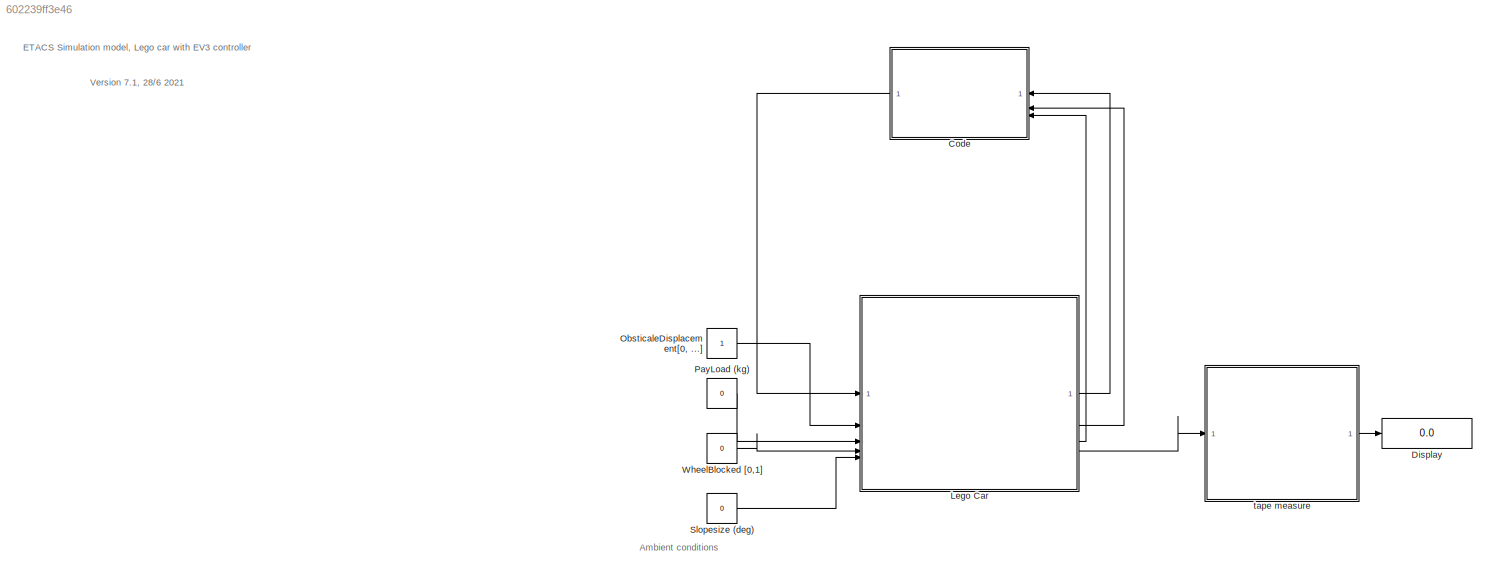
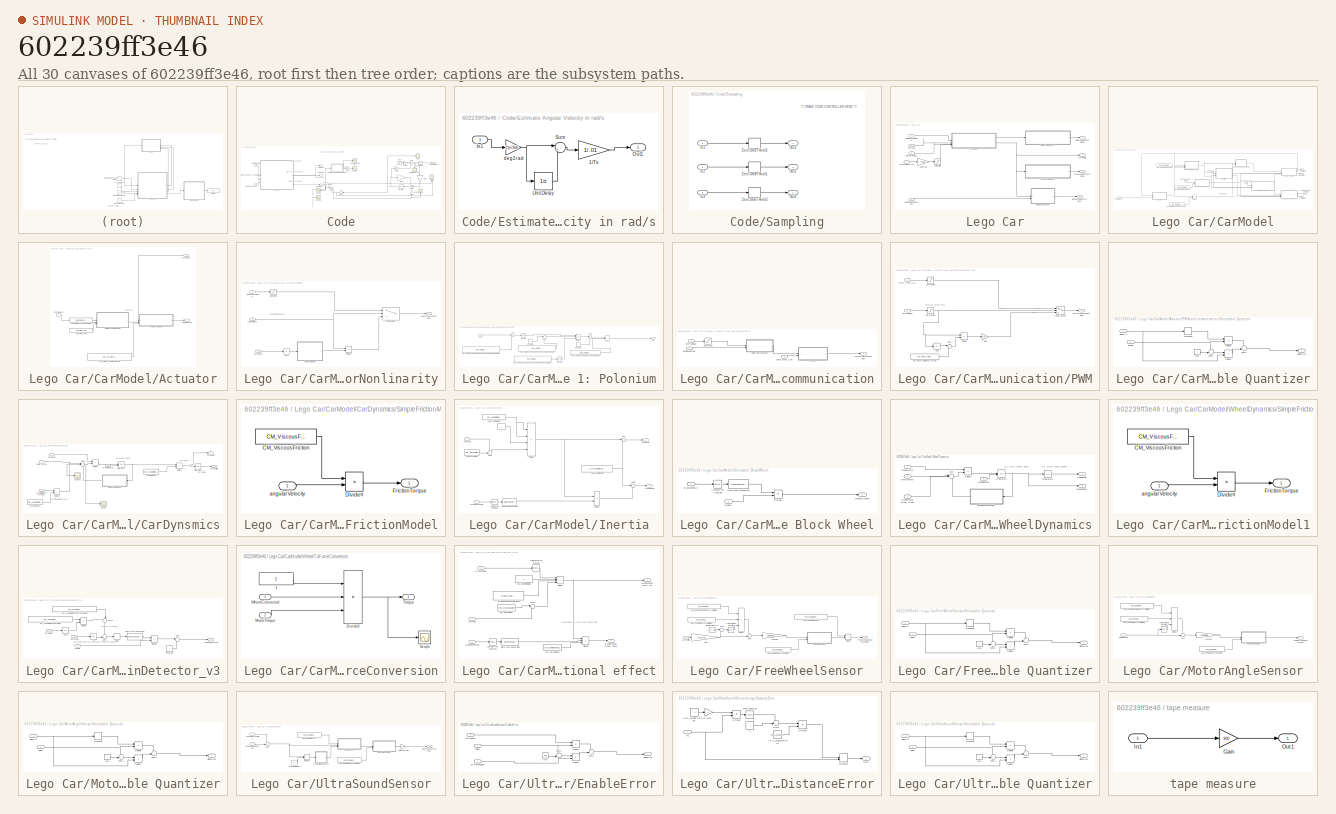
[diagram: thumbnail index - all 30 canvases of the model, root first then tree order]
MODEL slx_602239ff3e46
KIND model
CONFIG AbsTol = auto
CONFIG EnableMultiTasking = off
CONFIG FixedStep = auto
CONFIG MaxStep = auto
CONFIG MinStep = auto
CONFIG PreLoadFcn = InitPar7_1
CONFIG RelTol = 1e-20
CONFIG SampleTimeConstraint = Unconstrained
CONFIG SolverName = VariableStepAuto
CONFIG StartTime = 0.0
CONFIG StopTime = 30
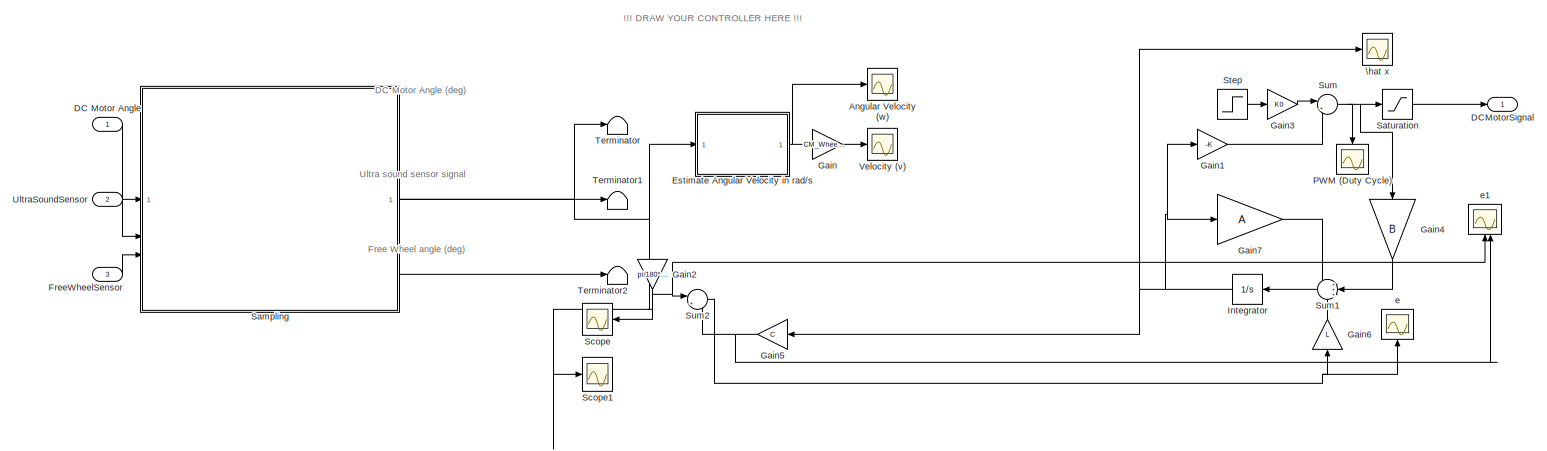
[diagram: Code - part 1/1, most of the canvas]
BLOCK [SubSystem] Code
  NameLocation = top
BLOCK [Scope] Code/Angular Velocity (w)
  Floating = off
  NumInputPorts = 1
  ScopeSpecificationString = Simulink.scopes.TimeScopeBlockCfg('CurrentConfiguration', extmgr.ConfigurationSet(extmgr.Configuration('Core','General UI',true),extmgr.Configuration('Core','Source UI',true),extmgr.Configuration('Sources','WiredSimulink',true,'DataLoggingVariableName','ScopeData1'),extmgr.Configuration('Visuals','Time Domain',true,'SerializedDisplays',{struct('MinYLimReal','3.97311','MaxYLimReal','4.02148','YLabe...<+1504ch>
BLOCK [Inport] Code/DC Motor Angle
BLOCK [Outport] Code/DCMotorSignal
  VectorParamsAs1DForOutWhenUnconnected = off
BLOCK [SubSystem] Code/Estimate Angular Velocity in rad//s
BLOCK [Gain] Code/Estimate Angular Velocity in rad//s/1//Ts
  Gain = 1/.01
BLOCK [Inport] Code/Estimate Angular Velocity in rad//s/In1
BLOCK [Outport] Code/Estimate Angular Velocity in rad//s/Out1
  VectorParamsAs1DForOutWhenUnconnected = off
BLOCK [Sum] Code/Estimate Angular Velocity in rad//s/Sum
  Inputs = |+-
BLOCK [UnitDelay] Code/Estimate Angular Velocity in rad//s/Unit Delay
  HasFrameUpgradeWarning = on
  SampleTime = -1
BLOCK [Gain] Code/Estimate Angular Velocity in rad//s/deg2rad
  Gain = 2*pi/360
BLOCK [Inport] Code/FreeWheelSensor
  Port = 3
BLOCK [Gain] Code/Gain
  Gain = CM_WheelRadius
BLOCK [Gain] Code/Gain1
  Gain = -K
  Multiplication = Matrix(K*u)
BLOCK [Gain] Code/Gain2
  Gain = pi/180*CM_WheelRadius
  NameLocation = left
BLOCK [Gain] Code/Gain3
  Gain = K0
  Multiplication = Matrix(K*u)
BLOCK [Gain] Code/Gain4
  Gain = B
  Multiplication = Matrix(K*u) (u vector)
  NameLocation = left
BLOCK [Gain] Code/Gain5
  Gain = C
  Multiplication = Matrix(K*u)
  NameLocation = top
BLOCK [Gain] Code/Gain6
  Gain = L
  Multiplication = Matrix(K*u)
  NameLocation = right
BLOCK [Gain] Code/Gain7
  Gain = A
  Multiplication = Matrix(K*u) (u vector)
BLOCK [Integrator] Code/Integrator
  NameLocation = top
BLOCK [Scope] Code/PWM (Duty Cycle)
  Floating = off
  NameLocation = left
  NumInputPorts = 1
  ScopeSpecificationString = Simulink.scopes.TimeScopeBlockCfg('CurrentConfiguration', extmgr.ConfigurationSet(extmgr.Configuration('Core','General UI',true),extmgr.Configuration('Core','Source UI',true),extmgr.Configuration('Sources','WiredSimulink',true,'DataLoggingVariableName','ScopeData2'),extmgr.Configuration('Visuals','Time Domain',true,'SerializedDisplays',{struct('MinYLimReal','-1.64887','MaxYLimReal','14.8398','YLab...<+1490ch>
BLOCK [SubSystem] Code/Sampling
BLOCK [Inport] Code/Sampling/In1
BLOCK [Inport] Code/Sampling/In2
  Port = 2
BLOCK [Inport] Code/Sampling/In3
  Port = 3
BLOCK [Outport] Code/Sampling/Out1
  VectorParamsAs1DForOutWhenUnconnected = off
BLOCK [Outport] Code/Sampling/Out2
  Port = 2
  VectorParamsAs1DForOutWhenUnconnected = off
BLOCK [Outport] Code/Sampling/Out3
  Port = 3
  VectorParamsAs1DForOutWhenUnconnected = off
BLOCK [ZeroOrderHold] Code/Sampling/Zero-Order Hold1
  SampleTime = SystemTs
BLOCK [ZeroOrderHold] Code/Sampling/Zero-Order Hold2
  SampleTime = SystemTs
BLOCK [ZeroOrderHold] Code/Sampling/Zero-Order Hold3
  SampleTime = SystemTs
BLOCK [Saturate] Code/Saturation
  LowerLimit = -100
  UpperLimit = 100
BLOCK [Scope] Code/Scope
  Floating = off
  NameLocation = top
  NumInputPorts = 1
  ScopeSpecificationString = Simulink.scopes.TimeScopeBlockCfg('CurrentConfiguration', extmgr.ConfigurationSet(extmgr.Configuration('Core','General UI',true),extmgr.Configuration('Core','Source UI',true),extmgr.Configuration('Sources','WiredSimulink',true,'DataLoggingVariableName','ScopeData1'),extmgr.Configuration('Visuals','Time Domain',true,'SerializedDisplays',{struct('MinYLimReal','-0.06205','MaxYLimReal','0.55842','YLab...<+1534ch>
BLOCK [Scope] Code/Scope1
  Floating = off
  NumInputPorts = 1
  ScopeSpecificationString = Simulink.scopes.TimeScopeBlockCfg('CurrentConfiguration', extmgr.ConfigurationSet(extmgr.Configuration('Core','General UI',true),extmgr.Configuration('Core','Source UI',true),extmgr.Configuration('Sources','WiredSimulink',true,'DataLoggingVariableName','ScopeData1'),extmgr.Configuration('Visuals','Time Domain',true,'SerializedDisplays',{struct('MinYLimReal','-864.875','MaxYLimReal','7783.875','YLa...<+1536ch>
BLOCK [Step] Code/Step
  After = 0.5
  SampleTime = 0
BLOCK [Sum] Code/Sum
  Inputs = |++
BLOCK [Sum] Code/Sum1
  Inputs = +++
  NameLocation = top
BLOCK [Sum] Code/Sum2
  Inputs = |+-
BLOCK [Terminator] Code/Terminator
BLOCK [Terminator] Code/Terminator1
BLOCK [Terminator] Code/Terminator2
BLOCK [Inport] Code/UltraSoundSensor
  Port = 2
BLOCK [Scope] Code/Velocity (v)
  Floating = off
  NumInputPorts = 1
  ScopeSpecificationString = Simulink.scopes.TimeScopeBlockCfg('CurrentConfiguration', extmgr.ConfigurationSet(extmgr.Configuration('Core','General UI',true),extmgr.Configuration('Core','Source UI',true),extmgr.Configuration('Sources','WiredSimulink',true,'DataLoggingVariableName','ScopeData1'),extmgr.Configuration('Visuals','Time Domain',true,'SerializedDisplays',{struct('MinYLimReal','-0.02618','MaxYLimReal','0.23562','YLab...<+1494ch>
BLOCK [Scope] Code/\hat x
  Floating = off
  NumInputPorts = 1
  ScopeSpecificationString = Simulink.scopes.TimeScopeBlockCfg('CurrentConfiguration', extmgr.ConfigurationSet(extmgr.Configuration('Core','General UI',true),extmgr.Configuration('Core','Source UI',true),extmgr.Configuration('Sources','WiredSimulink',true,'DataLoggingVariableName','ScopeData2'),extmgr.Configuration('Visuals','Time Domain',true),extmgr.Configuration('Tools','Plot Navigation',true),extmgr.Configuration('Tools',...<+40ch>
BLOCK [Scope] Code/e
  Floating = off
  NameLocation = right
  NumInputPorts = 1
  ScopeSpecificationString = Simulink.scopes.TimeScopeBlockCfg('CurrentConfiguration', extmgr.ConfigurationSet(extmgr.Configuration('Core','General UI',true),extmgr.Configuration('Core','Source UI',true),extmgr.Configuration('Sources','WiredSimulink',true,'DataLoggingVariableName','ScopeData1'),extmgr.Configuration('Visuals','Time Domain',true,'SerializedDisplays',{struct('MinYLimReal','-0.00253','MaxYLimReal','0.00885','YLab...<+1491ch>
BLOCK [Scope] Code/e1
  Floating = off
  NameLocation = right
  NumInputPorts = 2
  ScopeSpecificationString = Simulink.scopes.TimeScopeBlockCfg('CurrentConfiguration', extmgr.ConfigurationSet(extmgr.Configuration('Core','General UI',true),extmgr.Configuration('Core','Source UI',true),extmgr.Configuration('Sources','WiredSimulink',true,'DataLoggingVariableName','ScopeData1'),extmgr.Configuration('Visuals','Time Domain',true,'SerializedDisplays',{struct('MinYLimReal','-0.05847','MaxYLimReal','0.52619','YLab...<+1544ch>
BLOCK [Display] Display
  Decimation = 2
BLOCK [SubSystem] Lego Car
BLOCK [Inport] Lego Car/BlockWheel[0 1]
  Port = 4
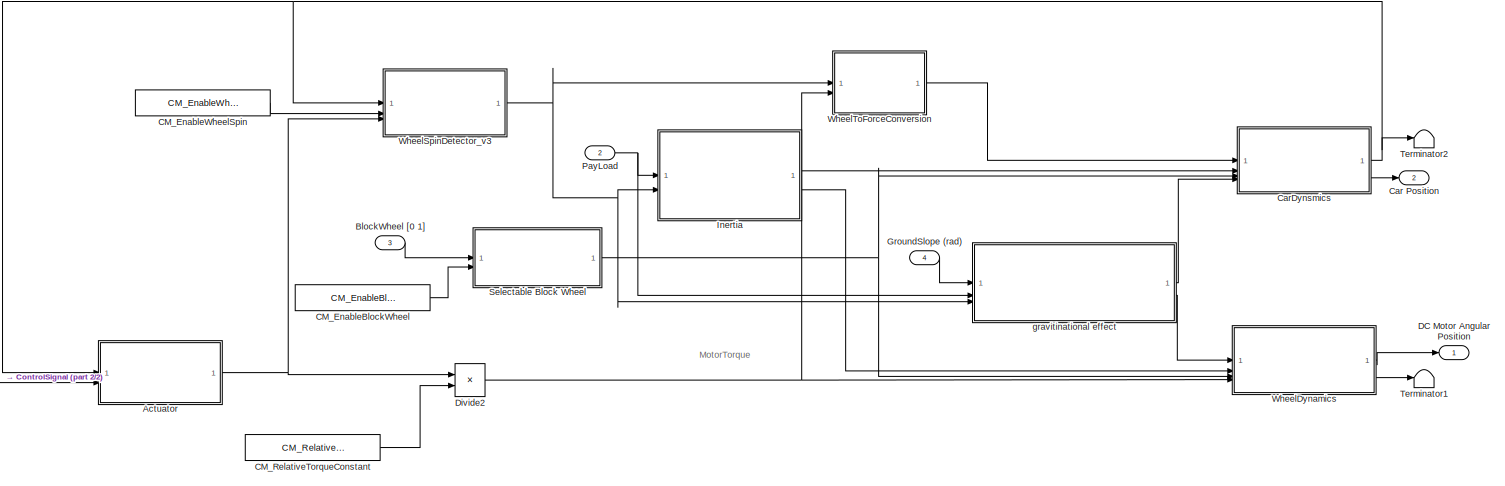
[diagram: Lego Car/CarModel - part 1/2, most of the canvas]
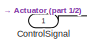
[diagram: Lego Car/CarModel - part 2/2, bottom left region]
BLOCK [SubSystem] Lego Car/CarModel
BLOCK [SubSystem] Lego Car/CarModel/Actuator
BLOCK [SubSystem] Lego Car/CarModel/Actuator/ActuatorNonlinarity
BLOCK [Abs] Lego Car/CarModel/Actuator/ActuatorNonlinarity/Abs1
  SaturateOnIntegerOverflow = off
BLOCK [Inport] Lego Car/CarModel/Actuator/ActuatorNonlinarity/CarSpeed
BLOCK [Inport] Lego Car/CarModel/Actuator/ActuatorNonlinarity/ControlSignal
  Port = 2
BLOCK [Product] Lego Car/CarModel/Actuator/ActuatorNonlinarity/Divide3
  Inputs = **
BLOCK [Outport] Lego Car/CarModel/Actuator/ActuatorNonlinarity/DutyScycle(procentage)
  VectorParamsAs1DForOutWhenUnconnected = off
BLOCK [MultiPortSwitch] Lego Car/CarModel/Actuator/ActuatorNonlinarity/Index Vector
  DataPortOrder = Zero-based contiguous
  InputSameDT = off
  Inputs = 2
  SaturateOnIntegerOverflow = off
  zeroidx = on
BLOCK [Inport] Lego Car/CarModel/Actuator/ActuatorNonlinarity/NonlinarityType [0 1]
  Port = 3
BLOCK [Saturate] Lego Car/CarModel/Actuator/ActuatorNonlinarity/Saturation
  LowerLimit = 0
  UpperLimit = 1
BLOCK [SubSystem] Lego Car/CarModel/Actuator/ActuatorNonlinarity/Tytpe 1: Polonium
BLOCK [Constant] Lego Car/CarModel/Actuator/ActuatorNonlinarity/Tytpe 1: Polonium/CM_Actuator_SpeedDependent_MaxGainSpeedOffset
  Value = CM_Actuator_SpeedDependent_MaxGainSpeedOffset
BLOCK [Constant] Lego Car/CarModel/Actuator/ActuatorNonlinarity/Tytpe 1: Polonium/CM_Actuator_SpeedDependent_MaxGainSpeedOffset1
  Value = CM_Actuator_SpeedDependent_MaxGainSpeedOffset
BLOCK [Constant] Lego Car/CarModel/Actuator/ActuatorNonlinarity/Tytpe 1: Polonium/CM_Actuator_SpeedDependent_MinGain
  Value = CM_Actuator_SpeedDependent_MinGain
BLOCK [Constant] Lego Car/CarModel/Actuator/ActuatorNonlinarity/Tytpe 1: Polonium/CM_Actuator_SpeedDependent_ZeroSpeedGain
  Value = CM_Actuator_SpeedDependent_ZeroSpeedGain
BLOCK [Constant] Lego Car/CarModel/Actuator/ActuatorNonlinarity/Tytpe 1: Polonium/Constant
BLOCK [Constant] Lego Car/CarModel/Actuator/ActuatorNonlinarity/Tytpe 1: Polonium/Constant1
BLOCK [Product] Lego Car/CarModel/Actuator/ActuatorNonlinarity/Tytpe 1: Polonium/Divide3
  Inputs = **/
BLOCK [Inport] Lego Car/CarModel/Actuator/ActuatorNonlinarity/Tytpe 1: Polonium/In1
BLOCK [MinMax] Lego Car/CarModel/Actuator/ActuatorNonlinarity/Tytpe 1: Polonium/Max
  Function = max
  Inputs = 2
BLOCK [Outport] Lego Car/CarModel/Actuator/ActuatorNonlinarity/Tytpe 1: Polonium/Out1
  VectorParamsAs1DForOutWhenUnconnected = off
BLOCK [Math] Lego Car/CarModel/Actuator/ActuatorNonlinarity/Tytpe 1: Polonium/Square
  Operator = square
  RndMeth = Zero
  SignedPower = on
BLOCK [Math] Lego Car/CarModel/Actuator/ActuatorNonlinarity/Tytpe 1: Polonium/Square1
  Operator = square
  RndMeth = Zero
  SignedPower = on
BLOCK [Sum] Lego Car/CarModel/Actuator/ActuatorNonlinarity/Tytpe 1: Polonium/Sum
  Inputs = |+-
BLOCK [Sum] Lego Car/CarModel/Actuator/ActuatorNonlinarity/Tytpe 1: Polonium/Sum1
  Inputs = |+-
BLOCK [Sum] Lego Car/CarModel/Actuator/ActuatorNonlinarity/Tytpe 1: Polonium/Sum2
  Inputs = |-+
BLOCK [Constant] Lego Car/CarModel/Actuator/CM_Actuator_NonlinarityType
  Value = CM_Actuator_NonlinarityType
BLOCK [Constant] Lego Car/CarModel/Actuator/CM_PWM_Type
  Value = CM_PWM_Type
BLOCK [Constant] Lego Car/CarModel/Actuator/CM_RelativeTorqueConstant1
  Value = CM_EnableActuatorQuantizer
BLOCK [Inport] Lego Car/CarModel/Actuator/CarSpeed
BLOCK [Inport] Lego Car/CarModel/Actuator/Controlsignal
  Port = 2
BLOCK [SubSystem] Lego Car/CarModel/Actuator/PWM and communication
BLOCK [Inport] Lego Car/CarModel/Actuator/PWM and communication/ControlSignal
BLOCK [Outport] Lego Car/CarModel/Actuator/PWM and communication/DutyScycle(procentage)
  VectorParamsAs1DForOutWhenUnconnected = off
BLOCK [Inport] Lego Car/CarModel/Actuator/PWM and communication/EnableQuantizer
  Port = 2
BLOCK [SubSystem] Lego Car/CarModel/Actuator/PWM and communication/PWM
BLOCK [Abs] Lego Car/CarModel/Actuator/PWM and communication/PWM/Abs1
  SaturateOnIntegerOverflow = off
BLOCK [Constant] Lego Car/CarModel/Actuator/PWM and communication/PWM/CM_PWM_FixedOff_offset
  Value = CM_PWM_FixedOff_offset
BLOCK [Inport] Lego Car/CarModel/Actuator/PWM and communication/PWM/ControlSignal
BLOCK [Product] Lego Car/CarModel/Actuator/PWM and communication/PWM/Divide3
  Inputs = */
BLOCK [Outport] Lego Car/CarModel/Actuator/PWM and communication/PWM/DutyScycle(procentage)
  VectorParamsAs1DForOutWhenUnconnected = off
BLOCK [Gain] Lego Car/CarModel/Actuator/PWM and communication/PWM/Gain
  Gain = 100
BLOCK [MultiPortSwitch] Lego Car/CarModel/Actuator/PWM and communication/PWM/Index Vector
  InputSameDT = off
  Inputs = 2
  SaturateOnIntegerOverflow = off
BLOCK [Inport] Lego Car/CarModel/Actuator/PWM and communication/PWM/PWM_ Type [1 2]
  Port = 2
BLOCK [Saturate] Lego Car/CarModel/Actuator/PWM and communication/PWM/Saturation
  LowerLimit = 1
  UpperLimit = 3
BLOCK [Saturate] Lego Car/CarModel/Actuator/PWM and communication/PWM/Saturation1
  LowerLimit = -100
  UpperLimit = 100
BLOCK [Sum] Lego Car/CarModel/Actuator/PWM and communication/PWM/Sum
  Inputs = |++
BLOCK [Saturate] Lego Car/CarModel/Actuator/PWM and communication/Saturation
  LowerLimit = -100
  UpperLimit = 100
BLOCK [Inport] Lego Car/CarModel/Actuator/PWM and communication/Select_PWM_type
  Port = 3
BLOCK [SubSystem] Lego Car/CarModel/Actuator/PWM and communication/Selectable Quantizer
BLOCK [Product] Lego Car/CarModel/Actuator/PWM and communication/Selectable Quantizer/Divide4
  Inputs = **
BLOCK [Product] Lego Car/CarModel/Actuator/PWM and communication/Selectable Quantizer/Divide5
  Inputs = **
BLOCK [Inport] Lego Car/CarModel/Actuator/PWM and communication/Selectable Quantizer/Enable
  Port = 2
BLOCK [Constant] Lego Car/CarModel/Actuator/PWM and communication/Selectable Quantizer/One
BLOCK [Quantizer] Lego Car/CarModel/Actuator/PWM and communication/Selectable Quantizer/Quantizer
  QuantizationInterval = 1
BLOCK [Inport] Lego Car/CarModel/Actuator/PWM and communication/Selectable Quantizer/Signal In
BLOCK [Outport] Lego Car/CarModel/Actuator/PWM and communication/Selectable Quantizer/Signal Out
  VectorParamsAs1DForOutWhenUnconnected = off
BLOCK [Sum] Lego Car/CarModel/Actuator/PWM and communication/Selectable Quantizer/Sum1
  Inputs = -+|
BLOCK [Sum] Lego Car/CarModel/Actuator/PWM and communication/Selectable Quantizer/Sum2
  Inputs = +|+
BLOCK [Outport] Lego Car/CarModel/Actuator/Relativetorque
  VectorParamsAs1DForOutWhenUnconnected = off
BLOCK [Inport] Lego Car/CarModel/BlockWheel [0 1]
  Port = 3
BLOCK [Constant] Lego Car/CarModel/CM_EnableBlockWheel
  Value = CM_EnableBlockWheel
BLOCK [Constant] Lego Car/CarModel/CM_EnableWheelSpin
  Value = CM_EnableWheelSpin
BLOCK [Constant] Lego Car/CarModel/CM_RelativeTorqueConstant
  Value = CM_RelativeTorqueConstant
BLOCK [Outport] Lego Car/CarModel/Car Position
  Port = 2
  VectorParamsAs1DForOutWhenUnconnected = off
BLOCK [SubSystem] Lego Car/CarModel/CarDynsmics
BLOCK [Inport] Lego Car/CarModel/CarDynsmics/CarInertia
  Port = 2
BLOCK [Outport] Lego Car/CarModel/CarDynsmics/CarPosition
  Port = 2
  VectorParamsAs1DForOutWhenUnconnected = off
BLOCK [Outport] Lego Car/CarModel/CarDynsmics/CarVelocity
  VectorParamsAs1DForOutWhenUnconnected = off
BLOCK [Product] Lego Car/CarModel/CarDynsmics/Divide1
  Inputs = **
BLOCK [Product] Lego Car/CarModel/CarDynsmics/Divide2
  Inputs = **
BLOCK [Product] Lego Car/CarModel/CarDynsmics/Divide4
  Inputs = /*
BLOCK [Integrator] Lego Car/CarModel/CarDynsmics/Integrator3
  ExternalReset = level
BLOCK [Integrator] Lego Car/CarModel/CarDynsmics/Integrator6
BLOCK [Inport] Lego Car/CarModel/CarDynsmics/MotorTorque
BLOCK [Scope] Lego Car/CarModel/CarDynsmics/Scope
  Floating = off
  NumInputPorts = 1
  ScopeSpecificationString = Simulink.scopes.TimeScopeBlockCfg('CurrentConfiguration', extmgr.ConfigurationSet(extmgr.Configuration('Core','General UI',true),extmgr.Configuration('Core','Source UI',true),extmgr.Configuration('Sources','WiredSimulink',true,'DataLoggingVariableName','ScopeData2'),extmgr.Configuration('Visuals','Time Domain',true,'SerializedDisplays',{struct('MinYLimReal','-0.31013','MaxYLimReal','0.30113','YLab...<+1387ch>
BLOCK [Scope] Lego Car/CarModel/CarDynsmics/Scope1
  Floating = off
  NumInputPorts = 2
  ScopeSpecificationString = Simulink.scopes.TimeScopeBlockCfg('CurrentConfiguration', extmgr.ConfigurationSet(extmgr.Configuration('Core','General UI',true),extmgr.Configuration('Core','Source UI',true),extmgr.Configuration('Sources','WiredSimulink',true,'DataLoggingVariableName','ScopeData3'),extmgr.Configuration('Visuals','Time Domain',true,'SerializedDisplays',{struct('MinYLimReal','-0.00117','MaxYLimReal','0.00001','YLab...<+1420ch>
BLOCK [SubSystem] Lego Car/CarModel/CarDynsmics/SimpleFrictionModel
  NameLocation = top
BLOCK [Constant] Lego Car/CarModel/CarDynsmics/SimpleFrictionModel/CM_ViscousFriction
  Value = CM_ViscousFriction
BLOCK [Product] Lego Car/CarModel/CarDynsmics/SimpleFrictionModel/Divide4
  Inputs = **
BLOCK [Outport] Lego Car/CarModel/CarDynsmics/SimpleFrictionModel/FrictionTorque
  VectorParamsAs1DForOutWhenUnconnected = off
BLOCK [Inport] Lego Car/CarModel/CarDynsmics/SimpleFrictionModel/angularVelocity
BLOCK [Sum] Lego Car/CarModel/CarDynsmics/Sum1
  Inputs = |+--
BLOCK [Inport] Lego Car/CarModel/CarDynsmics/WheelBlocked
  Port = 3
BLOCK [Constant] Lego Car/CarModel/CarDynsmics/WheelRadius
  Value = CM_WheelRadius
BLOCK [Constant] Lego Car/CarModel/CarDynsmics/WheelRadius1
  Value = CM_WheelRadius
BLOCK [Inport] Lego Car/CarModel/CarDynsmics/gravitinational forse, car
  Port = 4
BLOCK [Inport] Lego Car/CarModel/ControlSignal
BLOCK [Outport] Lego Car/CarModel/DC Motor Angular Position
  VectorParamsAs1DForOutWhenUnconnected = off
BLOCK [Product] Lego Car/CarModel/Divide2
  Inputs = **
BLOCK [Inport] Lego Car/CarModel/GroundSlope (rad)
  Port = 4
BLOCK [SubSystem] Lego Car/CarModel/Inertia
BLOCK [Constant] Lego Car/CarModel/Inertia/1 
BLOCK [Constant] Lego Car/CarModel/Inertia/CM_CarWaight
  Value = CM_CarWaight
BLOCK [Constant] Lego Car/CarModel/Inertia/CM_WheelInertia
  Value = CM_WheelInertia
BLOCK [Constant] Lego Car/CarModel/Inertia/CM_WheelRadius
  Value = CM_WheelRadius
BLOCK [Outport] Lego Car/CarModel/Inertia/CarInertia
  VectorParamsAs1DForOutWhenUnconnected = off
BLOCK [Reference] Lego Car/CarModel/Inertia/Compare To Constant  REF=simulink/Logic and Bit
Operations/Compare
To Constant
  SourceBlock = simulink/Logic and Bit\nOperations/Compare\nTo Constant
  SourceType = Compare To Constant
BLOCK [DataTypeConversion] Lego Car/CarModel/Inertia/Data Type Conversion
  OutDataTypeStr = double
  RndMeth = Floor
  SaturateOnIntegerOverflow = off
BLOCK [Product] Lego Car/CarModel/Inertia/Divide1
  Inputs = **
BLOCK [Product] Lego Car/CarModel/Inertia/Divide2
  Inputs = ****
BLOCK [Inport] Lego Car/CarModel/Inertia/PayLoad
BLOCK [Sum] Lego Car/CarModel/Inertia/Sum
  Inputs = |++
BLOCK [Sum] Lego Car/CarModel/Inertia/Sum1
  Inputs = ++|
BLOCK [Sum] Lego Car/CarModel/Inertia/Sum2
  Inputs = |++
BLOCK [Inport] Lego Car/CarModel/Inertia/WheelConnected
  Port = 2
BLOCK [Outport] Lego Car/CarModel/Inertia/WheelInertia
  Port = 2
  VectorParamsAs1DForOutWhenUnconnected = off
BLOCK [Inport] Lego Car/CarModel/PayLoad
  Port = 2
BLOCK [SubSystem] Lego Car/CarModel/Selectable Block Wheel
BLOCK [Inport] Lego Car/CarModel/Selectable Block Wheel/BlockWheelIn
BLOCK [Reference] Lego Car/CarModel/Selectable Block Wheel/Compare To Constant  REF=simulink/Logic and Bit
Operations/Compare
To Constant
  SourceBlock = simulink/Logic and Bit\nOperations/Compare\nTo Constant
  SourceType = Compare To Constant
BLOCK [DataTypeConversion] Lego Car/CarModel/Selectable Block Wheel/Data Type Conversion
  OutDataTypeStr = double
  RndMeth = Floor
  SaturateOnIntegerOverflow = off
BLOCK [Product] Lego Car/CarModel/Selectable Block Wheel/Divide4
  Inputs = **
BLOCK [Inport] Lego Car/CarModel/Selectable Block Wheel/Enable
  Port = 2
BLOCK [Outport] Lego Car/CarModel/Selectable Block Wheel/WheelBlocked
  VectorParamsAs1DForOutWhenUnconnected = off
BLOCK [Terminator] Lego Car/CarModel/Terminator1
BLOCK [Terminator] Lego Car/CarModel/Terminator2
BLOCK [SubSystem] Lego Car/CarModel/WheelDynamics
BLOCK [Product] Lego Car/CarModel/WheelDynamics/Divide1
  Inputs = /*
BLOCK [Integrator] Lego Car/CarModel/WheelDynamics/Integrator2
BLOCK [Integrator] Lego Car/CarModel/WheelDynamics/Integrator3
  ExternalReset = level
BLOCK [Inport] Lego Car/CarModel/WheelDynamics/MotorTorque
  Port = 4
BLOCK [SubSystem] Lego Car/CarModel/WheelDynamics/SimpleFrictionModel1
  NameLocation = top
BLOCK [Constant] Lego Car/CarModel/WheelDynamics/SimpleFrictionModel1/CM_ViscousFriction
  Value = CM_ViscousFriction
BLOCK [Product] Lego Car/CarModel/WheelDynamics/SimpleFrictionModel1/Divide4
  Inputs = **
BLOCK [Outport] Lego Car/CarModel/WheelDynamics/SimpleFrictionModel1/FrictionTorque
  VectorParamsAs1DForOutWhenUnconnected = off
BLOCK [Inport] Lego Car/CarModel/WheelDynamics/SimpleFrictionModel1/angularVelocity
BLOCK [Sum] Lego Car/CarModel/WheelDynamics/Sum
  Inputs = |+--
BLOCK [Outport] Lego Car/CarModel/WheelDynamics/WheelAngle
  VectorParamsAs1DForOutWhenUnconnected = off
BLOCK [Inport] Lego Car/CarModel/WheelDynamics/WheelBlocked
  Port = 3
BLOCK [Inport] Lego Car/CarModel/WheelDynamics/WheelInertia
  Port = 2
BLOCK [Outport] Lego Car/CarModel/WheelDynamics/WheelVelocity
  Port = 2
  VectorParamsAs1DForOutWhenUnconnected = off
BLOCK [Inport] Lego Car/CarModel/WheelDynamics/gravitinational torque, wheel
BLOCK [SubSystem] Lego Car/CarModel/WheelSpinDetector_v3
BLOCK [Abs] Lego Car/CarModel/WheelSpinDetector_v3/Abs
  SaturateOnIntegerOverflow = off
BLOCK [Abs] Lego Car/CarModel/WheelSpinDetector_v3/Abs1
  SaturateOnIntegerOverflow = off
BLOCK [Constant] Lego Car/CarModel/WheelSpinDetector_v3/CM_WheelSpinInputSlope
  Value = CM_WheelSpinInputSlope
BLOCK [Constant] Lego Car/CarModel/WheelSpinDetector_v3/CM_WheelSpinInputThreshold
  Value = CM_WheelSpinInputThresholdStandStill
BLOCK [Inport] Lego Car/CarModel/WheelSpinDetector_v3/CarVelocity
BLOCK [Constant] Lego Car/CarModel/WheelSpinDetector_v3/Constant
BLOCK [DataTypeConversion] Lego Car/CarModel/WheelSpinDetector_v3/Data Type Conversion
  OutDataTypeStr = double
  RndMeth = Floor
  SaturateOnIntegerOverflow = off
BLOCK [Product] Lego Car/CarModel/WheelSpinDetector_v3/Divide1
  Inputs = **
BLOCK [Product] Lego Car/CarModel/WheelSpinDetector_v3/Divide3
  Inputs = **
BLOCK [Inport] Lego Car/CarModel/WheelSpinDetector_v3/DutyCycle
  Port = 3
BLOCK [Inport] Lego Car/CarModel/WheelSpinDetector_v3/Enable
  Port = 2
BLOCK [Relay] Lego Car/CarModel/WheelSpinDetector_v3/Relay
  OffSwitchValue = .001
  OnSwitchValue = .01
BLOCK [Sum] Lego Car/CarModel/WheelSpinDetector_v3/Sum
  Inputs = |-+
BLOCK [Sum] Lego Car/CarModel/WheelSpinDetector_v3/Sum1
  Inputs = -+|
BLOCK [Sum] Lego Car/CarModel/WheelSpinDetector_v3/Sum2
  Inputs = ++|
  NameLocation = left
BLOCK [Outport] Lego Car/CarModel/WheelSpinDetector_v3/WheelConnected
  VectorParamsAs1DForOutWhenUnconnected = off
BLOCK [SubSystem] Lego Car/CarModel/WheelToForceConversion
BLOCK [Constant] Lego Car/CarModel/WheelToForceConversion/1
BLOCK [Product] Lego Car/CarModel/WheelToForceConversion/Divide6
  Inputs = ***
BLOCK [Inport] Lego Car/CarModel/WheelToForceConversion/MotorTorque
  Port = 2
BLOCK [Scope] Lego Car/CarModel/WheelToForceConversion/Scope
  Floating = off
  NumInputPorts = 1
  ScopeSpecificationString = Simulink.scopes.TimeScopeBlockCfg('CurrentConfiguration', extmgr.ConfigurationSet(extmgr.Configuration('Core','General UI',true),extmgr.Configuration('Core','Source UI',true),extmgr.Configuration('Sources','WiredSimulink',true,'DataLoggingVariableName','ScopeData5'),extmgr.Configuration('Visuals','Time Domain',true,'SerializedDisplays',{struct('MinYLimReal','-0.01725','MaxYLimReal','0.15525','YLab...<+1421ch>
BLOCK [Outport] Lego Car/CarModel/WheelToForceConversion/Torque
  VectorParamsAs1DForOutWhenUnconnected = off
BLOCK [Inport] Lego Car/CarModel/WheelToForceConversion/WheelConnected
BLOCK [SubSystem] Lego Car/CarModel/gravitinational effect
BLOCK [Constant] Lego Car/CarModel/gravitinational effect/CM_CarWaight
  Value = CM_CarWaight
BLOCK [Constant] Lego Car/CarModel/gravitinational effect/CM_CarWaight2
  Value = CM_WheelRadius
BLOCK [Constant] Lego Car/CarModel/gravitinational effect/CM_WheelRadius 
BLOCK [Reference] Lego Car/CarModel/gravitinational effect/Compare To Constant  REF=simulink/Logic and Bit
Operations/Compare
To Constant
  SourceBlock = simulink/Logic and Bit\nOperations/Compare\nTo Constant
  SourceType = Compare To Constant
BLOCK [DataTypeConversion] Lego Car/CarModel/gravitinational effect/Data Type Conversion
  OutDataTypeStr = double
  RndMeth = Floor
  SaturateOnIntegerOverflow = off
BLOCK [Product] Lego Car/CarModel/gravitinational effect/Divide1
  Inputs = ****
BLOCK [Product] Lego Car/CarModel/gravitinational effect/Divide2
  Inputs = ***
BLOCK [Constant] Lego Car/CarModel/gravitinational effect/GravitinationalAcceleration
  Value = GravitinationalAcceleration
BLOCK [Inport] Lego Car/CarModel/gravitinational effect/GroundSlope
BLOCK [Inport] Lego Car/CarModel/gravitinational effect/PayLoad
  Port = 2
BLOCK [Sum] Lego Car/CarModel/gravitinational effect/Sum2
  Inputs = |++
BLOCK [Trigonometry] Lego Car/CarModel/gravitinational effect/Trigonometric Function
BLOCK [Inport] Lego Car/CarModel/gravitinational effect/WheelConnected
  Port = 3
BLOCK [Outport] Lego Car/CarModel/gravitinational effect/gravitinational Forse, car
  VectorParamsAs1DForOutWhenUnconnected = off
BLOCK [Outport] Lego Car/CarModel/gravitinational effect/gravitinational torque, wheel
  Port = 2
  VectorParamsAs1DForOutWhenUnconnected = off
BLOCK [Outport] Lego Car/CarPosition
  Port = 4
  VectorParamsAs1DForOutWhenUnconnected = off
BLOCK [Gain] Lego Car/Deg 2 rad
  Gain = 1 / Rad2DegFactor
BLOCK [SubSystem] Lego Car/FreeWheelSensor
BLOCK [Inport] Lego Car/FreeWheelSensor/CarPosition
BLOCK [Product] Lego Car/FreeWheelSensor/Divide1
  Inputs = ***
BLOCK [Product] Lego Car/FreeWheelSensor/Divide5
  Inputs = **
BLOCK [Constant] Lego Car/FreeWheelSensor/FWS_EnableSensor
  Value = FWS_EnableSensor
BLOCK [Outport] Lego Car/FreeWheelSensor/FreeWheelAngleSensorSignal
  VectorParamsAs1DForOutWhenUnconnected = off
BLOCK [Gain] Lego Car/FreeWheelSensor/Gain
  Gain = 1/CM_WheelRadius
BLOCK [Constant] Lego Car/FreeWheelSensor/MAS_EnablePeriodicErrorAmplitude
  Value = MAS_EnablePeriodicErrorAmplitude
BLOCK [Constant] Lego Car/FreeWheelSensor/MAS_EnableSensorQuantizer
  Value = MAS_EnableSensorQuantizer
BLOCK [Constant] Lego Car/FreeWheelSensor/MAS_PeriodicErrorAmplitude
  Value = MAS_PeriodicErrorAmplitude
BLOCK [Constant] Lego Car/FreeWheelSensor/OffsetInAngleError
  Value = 127*2*pi/360
BLOCK [SubSystem] Lego Car/FreeWheelSensor/Selectable Quantizer
BLOCK [Product] Lego Car/FreeWheelSensor/Selectable Quantizer/Divide4
  Inputs = **
BLOCK [Product] Lego Car/FreeWheelSensor/Selectable Quantizer/Divide5
  Inputs = **
BLOCK [Constant] Lego Car/FreeWheelSensor/Selectable Quantizer/One
BLOCK [Quantizer] Lego Car/FreeWheelSensor/Selectable Quantizer/Quantizer
  QuantizationInterval = 1
BLOCK [Inport] Lego Car/FreeWheelSensor/Selectable Quantizer/Select
  Port = 2
BLOCK [Inport] Lego Car/FreeWheelSensor/Selectable Quantizer/Signal In
BLOCK [Outport] Lego Car/FreeWheelSensor/Selectable Quantizer/Signal Out
  VectorParamsAs1DForOutWhenUnconnected = off
BLOCK [Sum] Lego Car/FreeWheelSensor/Selectable Quantizer/Sum1
  Inputs = -+|
BLOCK [Sum] Lego Car/FreeWheelSensor/Selectable Quantizer/Sum2
  Inputs = +|+
BLOCK [Sum] Lego Car/FreeWheelSensor/Sum
  Inputs = ++|
BLOCK [Sum] Lego Car/FreeWheelSensor/Sum1
  Inputs = |++
BLOCK [Trigonometry] Lego Car/FreeWheelSensor/Trigonometric Function
BLOCK [Gain] Lego Car/FreeWheelSensor/rad2deg
  Gain = Rad2DegFactor
BLOCK [Outport] Lego Car/FreeWheelSensorSignal1
  Port = 3
  VectorParamsAs1DForOutWhenUnconnected = off
BLOCK [Inport] Lego Car/GroundSlope(rad)
  Port = 5
BLOCK [SubSystem] Lego Car/MotorAngleSensor
BLOCK [Outport] Lego Car/MotorAngleSensor/DCMotorAngleSensorSignal
  VectorParamsAs1DForOutWhenUnconnected = off
BLOCK [Inport] Lego Car/MotorAngleSensor/DCMototAngle
BLOCK [Product] Lego Car/MotorAngleSensor/Divide1
  Inputs = ***
BLOCK [Constant] Lego Car/MotorAngleSensor/MAS_EnablePeriodicErrorAmplitude
  Value = MAS_EnablePeriodicErrorAmplitude
BLOCK [Constant] Lego Car/MotorAngleSensor/MAS_EnableSensorQuantizer
  Value = MAS_EnableSensorQuantizer
BLOCK [Constant] Lego Car/MotorAngleSensor/MAS_PeriodicErrorAmplitude
  Value = MAS_PeriodicErrorAmplitude
BLOCK [SubSystem] Lego Car/MotorAngleSensor/Selectable Quantizer
BLOCK [Product] Lego Car/MotorAngleSensor/Selectable Quantizer/Divide4
  Inputs = **
BLOCK [Product] Lego Car/MotorAngleSensor/Selectable Quantizer/Divide5
  Inputs = **
BLOCK [Constant] Lego Car/MotorAngleSensor/Selectable Quantizer/One
BLOCK [Quantizer] Lego Car/MotorAngleSensor/Selectable Quantizer/Quantizer
  QuantizationInterval = 1
BLOCK [Inport] Lego Car/MotorAngleSensor/Selectable Quantizer/Select
  Port = 2
BLOCK [Inport] Lego Car/MotorAngleSensor/Selectable Quantizer/Signal In
BLOCK [Outport] Lego Car/MotorAngleSensor/Selectable Quantizer/Signal Out
  VectorParamsAs1DForOutWhenUnconnected = off
BLOCK [Sum] Lego Car/MotorAngleSensor/Selectable Quantizer/Sum1
  Inputs = -+|
BLOCK [Sum] Lego Car/MotorAngleSensor/Selectable Quantizer/Sum2
  Inputs = +|+
BLOCK [Sum] Lego Car/MotorAngleSensor/Sum
  Inputs = ++|
BLOCK [Trigonometry] Lego Car/MotorAngleSensor/Trigonometric Function
BLOCK [Gain] Lego Car/MotorAngleSensor/rad2deg
  Gain = Rad2DegFactor
BLOCK [Outport] Lego Car/MotorAngleSensorSignal
  VectorParamsAs1DForOutWhenUnconnected = off
BLOCK [Inport] Lego Car/ObstacleDisplavement 
  Port = 2
BLOCK [Inport] Lego Car/PayLoad
  Port = 3
BLOCK [Inport] Lego Car/RelativeInputVoltage
BLOCK [Saturate] Lego Car/Saturation
  LowerLimit = -pi/2*.99
  UpperLimit = pi/2*.99
BLOCK [SubSystem] Lego Car/UltraSoundSensor
BLOCK [Inport] Lego Car/UltraSoundSensor/AbsoluteCarPosition
BLOCK [SubSystem] Lego Car/UltraSoundSensor/EnableError
BLOCK [Product] Lego Car/UltraSoundSensor/EnableError/Divide4
  Inputs = **
BLOCK [Product] Lego Car/UltraSoundSensor/EnableError/Divide5
  Inputs = **
BLOCK [Inport] Lego Car/UltraSoundSensor/EnableError/ErrorFreeSignal
  Port = 2
BLOCK [Inport] Lego Car/UltraSoundSensor/EnableError/ErrorSignal
  Port = 3
BLOCK [Constant] Lego Car/UltraSoundSensor/EnableError/One
  Value = One
BLOCK [Inport] Lego Car/UltraSoundSensor/EnableError/Select
BLOCK [Outport] Lego Car/UltraSoundSensor/EnableError/Signal Out
  VectorParamsAs1DForOutWhenUnconnected = off
BLOCK [Sum] Lego Car/UltraSoundSensor/EnableError/Sum1
  Inputs = -+|
BLOCK [Sum] Lego Car/UltraSoundSensor/EnableError/Sum2
  Inputs = +|+
BLOCK [SubSystem] Lego Car/UltraSoundSensor/LargeDistanceError
BLOCK [Constant] Lego Car/UltraSoundSensor/LargeDistanceError/1
BLOCK [Product] Lego Car/UltraSoundSensor/LargeDistanceError/Divide
  Inputs = /*
BLOCK [Product] Lego Car/UltraSoundSensor/LargeDistanceError/Divide1
  Inputs = **
BLOCK [Gain] Lego Car/UltraSoundSensor/LargeDistanceError/Gain
  Gain = -1
BLOCK [Inport] Lego Car/UltraSoundSensor/LargeDistanceError/In1
BLOCK [Math] Lego Car/UltraSoundSensor/LargeDistanceError/Math Function
  SignedPower = on
BLOCK [MinMax] Lego Car/UltraSoundSensor/LargeDistanceError/MinMax1
  Inputs = 2
BLOCK [Outport] Lego Car/UltraSoundSensor/LargeDistanceError/Out1
  VectorParamsAs1DForOutWhenUnconnected = off
BLOCK [Sum] Lego Car/UltraSoundSensor/LargeDistanceError/Sum1
  Inputs = -+|
BLOCK [Constant] Lego Car/UltraSoundSensor/LargeDistanceError/USS_LargeErrorSlope
  Value = .7
BLOCK [Constant] Lego Car/UltraSoundSensor/LargeDistanceError/USS_LargeMaxValue
  Value = USS_LargeMaxValue
BLOCK [MinMax] Lego Car/UltraSoundSensor/MinMax1
  Inputs = 2
BLOCK [Inport] Lego Car/UltraSoundSensor/ObstacleDisplacement
  Port = 2
BLOCK [SubSystem] Lego Car/UltraSoundSensor/Selectable Quantizer
BLOCK [Product] Lego Car/UltraSoundSensor/Selectable Quantizer/Divide4
  Inputs = **
BLOCK [Product] Lego Car/UltraSoundSensor/Selectable Quantizer/Divide5
  Inputs = **
BLOCK [Constant] Lego Car/UltraSoundSensor/Selectable Quantizer/One
BLOCK [Quantizer] Lego Car/UltraSoundSensor/Selectable Quantizer/Quantizer
  QuantizationInterval = 1
BLOCK [Inport] Lego Car/UltraSoundSensor/Selectable Quantizer/Select
  Port = 2
BLOCK [Inport] Lego Car/UltraSoundSensor/Selectable Quantizer/Signal In
BLOCK [Outport] Lego Car/UltraSoundSensor/Selectable Quantizer/Signal Out
  VectorParamsAs1DForOutWhenUnconnected = off
BLOCK [Sum] Lego Car/UltraSoundSensor/Selectable Quantizer/Sum1
  Inputs = -+|
BLOCK [Sum] Lego Car/UltraSoundSensor/Selectable Quantizer/Sum2
  Inputs = +|+
BLOCK [Sum] Lego Car/UltraSoundSensor/Sum
  Inputs = -+|
BLOCK [Constant] Lego Car/UltraSoundSensor/USS_EnableError
  Value = USS_EnableError
BLOCK [Constant] Lego Car/UltraSoundSensor/USS_EnableSensorQuantizer
  Value = USS_EnableSensorQuantizer
BLOCK [Constant] Lego Car/UltraSoundSensor/USS_MinDistance
  Value = .02
BLOCK [Outport] Lego Car/UltraSoundSensor/UltraSoundSensorsignal
  VectorParamsAs1DForOutWhenUnconnected = off
BLOCK [Gain] Lego Car/UltraSoundSensor/UnitConversion
  Gain = USS_UnitConversion
BLOCK [Outport] Lego Car/UltraSoundSensorSignal
  Port = 2
  VectorParamsAs1DForOutWhenUnconnected = off
BLOCK [Constant] ObsticaleDisplacement[0, ...]
BLOCK [Constant] PayLoad (kg)
  Value = 0
BLOCK [Constant] Slopesize (deg)
  Value = 0
BLOCK [Constant] WheelBlocked [0,1]
  Value = 0
BLOCK [SubSystem] tape measure
BLOCK [Gain] tape measure/Gain
  Gain = 100
BLOCK [Inport] tape measure/In1
BLOCK [Outport] tape measure/Out1
  VectorParamsAs1DForOutWhenUnconnected = off
ANNOTATION (root): Version 7.1, 28/6 2021
ANNOTATION (root): Ambient conditions
ANNOTATION (root): ETACS Simulation model, Lego car with EV3 controller
ANNOTATION Code: !!! DRAW YOUR CONTROLLER HERE !!!
ANNOTATION Code: DC Motor Angle (deg)
ANNOTATION Code: Free Wheel angle (deg)
ANNOTATION Code: Ultra sound sensor signal
ANNOTATION Code/Sampling: !!! DRAW YOUR CONTROLLER HERE !!!
ANNOTATION Lego Car/CarModel: MotorTorque
ANNOTATION Lego Car/CarModel/Actuator: Duty sycle
ANNOTATION Lego Car/CarModel/Actuator/ActuatorNonlinarity: Constant period PWM
ANNOTATION Lego Car/CarModel/Actuator/PWM and communication/PWM: Constant period PWM
ANNOTATION Lego Car/CarModel/CarDynsmics: Car Position
ANNOTATION Lego Car/CarModel/CarDynsmics: Car angular velocity
ANNOTATION Lego Car/CarModel/CarDynsmics: Car velocity
ANNOTATION Lego Car/CarModel/CarDynsmics: gravitinational torque, car
ANNOTATION Lego Car/CarModel/WheelDynamics: DC Motor Angular Position
ANNOTATION Lego Car/CarModel/WheelDynamics: DC motor angulor velocity
ANNOTATION Lego Car/CarModel/WheelSpinDetector_v3: Dynamic Threshold
ANNOTATION Lego Car/CarModel/WheelSpinDetector_v3: Hysteresis inserted to handle friction on slopes
ANNOTATION Lego Car/CarModel/gravitinational effect: Wheel does not see gravity during spin!
LINE Code/DC Motor Angle:1 -> Code/Sampling:1
LINE Code/Estimate Angular Velocity in rad//s/1//Ts:1 -> Code/Estimate Angular Velocity in rad//s/Out1:1
LINE Code/Estimate Angular Velocity in rad//s/In1:1 -> Code/Estimate Angular Velocity in rad//s/deg2rad:1
LINE Code/Estimate Angular Velocity in rad//s/Sum:1 -> Code/Estimate Angular Velocity in rad//s/1//Ts:1
LINE Code/Estimate Angular Velocity in rad//s/Unit Delay:1 -> Code/Estimate Angular Velocity in rad//s/Sum:2
NET Code/Estimate Angular Velocity in rad//s/deg2rad:1 -> Code/Estimate Angular Velocity in rad//s/Sum:1, Code/Estimate Angular Velocity in rad//s/Unit Delay:1
NET Code/Estimate Angular Velocity in rad//s:1 -> Code/Angular Velocity (w):1, Code/Gain:1
LINE Code/FreeWheelSensor:1 -> Code/Sampling:3
LINE Code/Gain1:1 -> Code/Sum:2
NET Code/Gain2:1 -> Code/Scope:1, Code/Sum2:1, Code/e1:1
LINE Code/Gain3:1 -> Code/Sum:1
LINE Code/Gain4:1 -> Code/Sum1:2
NET Code/Gain5:1 -> Code/Sum2:2, Code/e1:2
LINE Code/Gain6:1 -> Code/Sum1:3
LINE Code/Gain7:1 -> Code/Sum1:1
LINE Code/Gain:1 -> Code/Velocity (v):1
NET Code/Integrator:1 -> Code/Gain1:1, Code/Gain5:1, Code/Gain7:1, Code/\hat x:1
LINE Code/Sampling/In1:1 -> Code/Sampling/Zero-Order Hold2:1
LINE Code/Sampling/In2:1 -> Code/Sampling/Zero-Order Hold1:1
LINE Code/Sampling/In3:1 -> Code/Sampling/Zero-Order Hold3:1
LINE Code/Sampling/Zero-Order Hold1:1 -> Code/Sampling/Out2:1
LINE Code/Sampling/Zero-Order Hold2:1 -> Code/Sampling/Out1:1
LINE Code/Sampling/Zero-Order Hold3:1 -> Code/Sampling/Out3:1
NET Code/Sampling:1 -> Code/Estimate Angular Velocity in rad//s:1, Code/Gain2:1, Code/Scope1:1, Code/Terminator:1
LINE Code/Sampling:2 -> Code/Terminator1:1
LINE Code/Sampling:3 -> Code/Terminator2:1
LINE Code/Saturation:1 -> Code/DCMotorSignal:1
LINE Code/Step:1 -> Code/Gain3:1
LINE Code/Sum1:1 -> Code/Integrator:1
NET Code/Sum2:1 -> Code/Gain6:1, Code/e:1
NET Code/Sum:1 -> Code/Gain4:1, Code/PWM (Duty Cycle):1, Code/Saturation:1
LINE Code/UltraSoundSensor:1 -> Code/Sampling:2
LINE Code:1 -> Lego Car:1
LINE Lego Car/BlockWheel[0 1]:1 -> Lego Car/CarModel:3
LINE Lego Car/CarModel/Actuator/ActuatorNonlinarity/Abs1:1 -> Lego Car/CarModel/Actuator/ActuatorNonlinarity/Tytpe 1: Polonium:1
LINE Lego Car/CarModel/Actuator/ActuatorNonlinarity/CarSpeed:1 -> Lego Car/CarModel/Actuator/ActuatorNonlinarity/Abs1:1
NET Lego Car/CarModel/Actuator/ActuatorNonlinarity/ControlSignal:1 -> Lego Car/CarModel/Actuator/ActuatorNonlinarity/Divide3:1, Lego Car/CarModel/Actuator/ActuatorNonlinarity/Index Vector:2
LINE Lego Car/CarModel/Actuator/ActuatorNonlinarity/Divide3:1 -> Lego Car/CarModel/Actuator/ActuatorNonlinarity/Index Vector:3
LINE Lego Car/CarModel/Actuator/ActuatorNonlinarity/Index Vector:1 -> Lego Car/CarModel/Actuator/ActuatorNonlinarity/DutyScycle(procentage):1
LINE Lego Car/CarModel/Actuator/ActuatorNonlinarity/NonlinarityType [0 1]:1 -> Lego Car/CarModel/Actuator/ActuatorNonlinarity/Saturation:1
LINE Lego Car/CarModel/Actuator/ActuatorNonlinarity/Saturation:1 -> Lego Car/CarModel/Actuator/ActuatorNonlinarity/Index Vector:1
LINE Lego Car/CarModel/Actuator/ActuatorNonlinarity/Tytpe 1: Polonium/CM_Actuator_SpeedDependent_MaxGainSpeedOffset1:1 -> Lego Car/CarModel/Actuator/ActuatorNonlinarity/Tytpe 1: Polonium/Square1:1
LINE Lego Car/CarModel/Actuator/ActuatorNonlinarity/Tytpe 1: Polonium/CM_Actuator_SpeedDependent_MaxGainSpeedOffset:1 -> Lego Car/CarModel/Actuator/ActuatorNonlinarity/Tytpe 1: Polonium/Sum:2
LINE Lego Car/CarModel/Actuator/ActuatorNonlinarity/Tytpe 1: Polonium/CM_Actuator_SpeedDependent_MinGain:1 -> Lego Car/CarModel/Actuator/ActuatorNonlinarity/Tytpe 1: Polonium/Max:2
LINE Lego Car/CarModel/Actuator/ActuatorNonlinarity/Tytpe 1: Polonium/CM_Actuator_SpeedDependent_ZeroSpeedGain:1 -> Lego Car/CarModel/Actuator/ActuatorNonlinarity/Tytpe 1: Polonium/Sum1:2
LINE Lego Car/CarModel/Actuator/ActuatorNonlinarity/Tytpe 1: Polonium/Constant1:1 -> Lego Car/CarModel/Actuator/ActuatorNonlinarity/Tytpe 1: Polonium/Sum2:2
LINE Lego Car/CarModel/Actuator/ActuatorNonlinarity/Tytpe 1: Polonium/Constant:1 -> Lego Car/CarModel/Actuator/ActuatorNonlinarity/Tytpe 1: Polonium/Sum1:1
LINE Lego Car/CarModel/Actuator/ActuatorNonlinarity/Tytpe 1: Polonium/Divide3:1 -> Lego Car/CarModel/Actuator/ActuatorNonlinarity/Tytpe 1: Polonium/Sum2:1
LINE Lego Car/CarModel/Actuator/ActuatorNonlinarity/Tytpe 1: Polonium/In1:1 -> Lego Car/CarModel/Actuator/ActuatorNonlinarity/Tytpe 1: Polonium/Sum:1
LINE Lego Car/CarModel/Actuator/ActuatorNonlinarity/Tytpe 1: Polonium/Max:1 -> Lego Car/CarModel/Actuator/ActuatorNonlinarity/Tytpe 1: Polonium/Out1:1
LINE Lego Car/CarModel/Actuator/ActuatorNonlinarity/Tytpe 1: Polonium/Square1:1 -> Lego Car/CarModel/Actuator/ActuatorNonlinarity/Tytpe 1: Polonium/Divide3:3
LINE Lego Car/CarModel/Actuator/ActuatorNonlinarity/Tytpe 1: Polonium/Square:1 -> Lego Car/CarModel/Actuator/ActuatorNonlinarity/Tytpe 1: Polonium/Divide3:1
LINE Lego Car/CarModel/Actuator/ActuatorNonlinarity/Tytpe 1: Polonium/Sum1:1 -> Lego Car/CarModel/Actuator/ActuatorNonlinarity/Tytpe 1: Polonium/Divide3:2
LINE Lego Car/CarModel/Actuator/ActuatorNonlinarity/Tytpe 1: Polonium/Sum2:1 -> Lego Car/CarModel/Actuator/ActuatorNonlinarity/Tytpe 1: Polonium/Max:1
LINE Lego Car/CarModel/Actuator/ActuatorNonlinarity/Tytpe 1: Polonium/Sum:1 -> Lego Car/CarModel/Actuator/ActuatorNonlinarity/Tytpe 1: Polonium/Square:1
LINE Lego Car/CarModel/Actuator/ActuatorNonlinarity/Tytpe 1: Polonium:1 -> Lego Car/CarModel/Actuator/ActuatorNonlinarity/Divide3:2
LINE Lego Car/CarModel/Actuator/ActuatorNonlinarity:1 -> Lego Car/CarModel/Actuator/Relativetorque:1
LINE Lego Car/CarModel/Actuator/CM_Actuator_NonlinarityType:1 -> Lego Car/CarModel/Actuator/ActuatorNonlinarity:3
LINE Lego Car/CarModel/Actuator/CM_PWM_Type:1 -> Lego Car/CarModel/Actuator/PWM and communication:3
LINE Lego Car/CarModel/Actuator/CM_RelativeTorqueConstant1:1 -> Lego Car/CarModel/Actuator/PWM and communication:2
LINE Lego Car/CarModel/Actuator/CarSpeed:1 -> Lego Car/CarModel/Actuator/ActuatorNonlinarity:1
LINE Lego Car/CarModel/Actuator/Controlsignal:1 -> Lego Car/CarModel/Actuator/PWM and communication:1
LINE Lego Car/CarModel/Actuator/PWM and communication/ControlSignal:1 -> Lego Car/CarModel/Actuator/PWM and communication/Saturation:1
LINE Lego Car/CarModel/Actuator/PWM and communication/EnableQuantizer:1 -> Lego Car/CarModel/Actuator/PWM and communication/Selectable Quantizer:2
LINE Lego Car/CarModel/Actuator/PWM and communication/PWM/Abs1:1 -> Lego Car/CarModel/Actuator/PWM and communication/PWM/Sum:1
LINE Lego Car/CarModel/Actuator/PWM and communication/PWM/CM_PWM_FixedOff_offset:1 -> Lego Car/CarModel/Actuator/PWM and communication/PWM/Sum:2
LINE Lego Car/CarModel/Actuator/PWM and communication/PWM/ControlSignal:1 -> Lego Car/CarModel/Actuator/PWM and communication/PWM/Saturation1:1
LINE Lego Car/CarModel/Actuator/PWM and communication/PWM/Divide3:1 -> Lego Car/CarModel/Actuator/PWM and communication/PWM/Gain:1
LINE Lego Car/CarModel/Actuator/PWM and communication/PWM/Gain:1 -> Lego Car/CarModel/Actuator/PWM and communication/PWM/Index Vector:3
LINE Lego Car/CarModel/Actuator/PWM and communication/PWM/Index Vector:1 -> Lego Car/CarModel/Actuator/PWM and communication/PWM/DutyScycle(procentage):1
LINE Lego Car/CarModel/Actuator/PWM and communication/PWM/PWM_ Type [1 2]:1 -> Lego Car/CarModel/Actuator/PWM and communication/PWM/Saturation:1
NET Lego Car/CarModel/Actuator/PWM and communication/PWM/Saturation1:1 -> Lego Car/CarModel/Actuator/PWM and communication/PWM/Abs1:1, Lego Car/CarModel/Actuator/PWM and communication/PWM/Divide3:1, Lego Car/CarModel/Actuator/PWM and communication/PWM/Index Vector:2
LINE Lego Car/CarModel/Actuator/PWM and communication/PWM/Saturation:1 -> Lego Car/CarModel/Actuator/PWM and communication/PWM/Index Vector:1
LINE Lego Car/CarModel/Actuator/PWM and communication/PWM/Sum:1 -> Lego Car/CarModel/Actuator/PWM and communication/PWM/Divide3:2
LINE Lego Car/CarModel/Actuator/PWM and communication/PWM:1 -> Lego Car/CarModel/Actuator/PWM and communication/DutyScycle(procentage):1
LINE Lego Car/CarModel/Actuator/PWM and communication/Saturation:1 -> Lego Car/CarModel/Actuator/PWM and communication/Selectable Quantizer:1
LINE Lego Car/CarModel/Actuator/PWM and communication/Select_PWM_type:1 -> Lego Car/CarModel/Actuator/PWM and communication/PWM:2
LINE Lego Car/CarModel/Actuator/PWM and communication/Selectable Quantizer/Divide4:1 -> Lego Car/CarModel/Actuator/PWM and communication/Selectable Quantizer/Sum2:2
LINE Lego Car/CarModel/Actuator/PWM and communication/Selectable Quantizer/Divide5:1 -> Lego Car/CarModel/Actuator/PWM and communication/Selectable Quantizer/Sum2:1
NET Lego Car/CarModel/Actuator/PWM and communication/Selectable Quantizer/Enable:1 -> Lego Car/CarModel/Actuator/PWM and communication/Selectable Quantizer/Divide5:2, Lego Car/CarModel/Actuator/PWM and communication/Selectable Quantizer/Sum1:1
LINE Lego Car/CarModel/Actuator/PWM and communication/Selectable Quantizer/One:1 -> Lego Car/CarModel/Actuator/PWM and communication/Selectable Quantizer/Sum1:2
LINE Lego Car/CarModel/Actuator/PWM and communication/Selectable Quantizer/Quantizer:1 -> Lego Car/CarModel/Actuator/PWM and communication/Selectable Quantizer/Divide5:1
NET Lego Car/CarModel/Actuator/PWM and communication/Selectable Quantizer/Signal In:1 -> Lego Car/CarModel/Actuator/PWM and communication/Selectable Quantizer/Divide4:2, Lego Car/CarModel/Actuator/PWM and communication/Selectable Quantizer/Quantizer:1
LINE Lego Car/CarModel/Actuator/PWM and communication/Selectable Quantizer/Sum1:1 -> Lego Car/CarModel/Actuator/PWM and communication/Selectable Quantizer/Divide4:1
LINE Lego Car/CarModel/Actuator/PWM and communication/Selectable Quantizer/Sum2:1 -> Lego Car/CarModel/Actuator/PWM and communication/Selectable Quantizer/Signal Out:1
LINE Lego Car/CarModel/Actuator/PWM and communication/Selectable Quantizer:1 -> Lego Car/CarModel/Actuator/PWM and communication/PWM:1
LINE Lego Car/CarModel/Actuator/PWM and communication:1 -> Lego Car/CarModel/Actuator/ActuatorNonlinarity:2
NET Lego Car/CarModel/Actuator:1 -> Lego Car/CarModel/Divide2:1, Lego Car/CarModel/WheelSpinDetector_v3:3
LINE Lego Car/CarModel/BlockWheel [0 1]:1 -> Lego Car/CarModel/Selectable Block Wheel:1
LINE Lego Car/CarModel/CM_EnableBlockWheel:1 -> Lego Car/CarModel/Selectable Block Wheel:2
LINE Lego Car/CarModel/CM_EnableWheelSpin:1 -> Lego Car/CarModel/WheelSpinDetector_v3:2
LINE Lego Car/CarModel/CM_RelativeTorqueConstant:1 -> Lego Car/CarModel/Divide2:2
LINE Lego Car/CarModel/CarDynsmics/CarInertia:1 -> Lego Car/CarModel/CarDynsmics/Divide4:1
NET Lego Car/CarModel/CarDynsmics/Divide1:1 -> Lego Car/CarModel/CarDynsmics/CarVelocity:1, Lego Car/CarModel/CarDynsmics/Integrator6:1
LINE Lego Car/CarModel/CarDynsmics/Divide2:1 -> Lego Car/CarModel/CarDynsmics/Sum1:2
LINE Lego Car/CarModel/CarDynsmics/Divide4:1 -> Lego Car/CarModel/CarDynsmics/Integrator3:1
NET Lego Car/CarModel/CarDynsmics/Integrator3:1 -> Lego Car/CarModel/CarDynsmics/Divide1:1, Lego Car/CarModel/CarDynsmics/SimpleFrictionModel:1
LINE Lego Car/CarModel/CarDynsmics/Integrator6:1 -> Lego Car/CarModel/CarDynsmics/CarPosition:1
NET Lego Car/CarModel/CarDynsmics/MotorTorque:1 -> Lego Car/CarModel/CarDynsmics/Scope1:1, Lego Car/CarModel/CarDynsmics/Sum1:1
LINE Lego Car/CarModel/CarDynsmics/SimpleFrictionModel/CM_ViscousFriction:1 -> Lego Car/CarModel/CarDynsmics/SimpleFrictionModel/Divide4:1
LINE Lego Car/CarModel/CarDynsmics/SimpleFrictionModel/Divide4:1 -> Lego Car/CarModel/CarDynsmics/SimpleFrictionModel/FrictionTorque:1
LINE Lego Car/CarModel/CarDynsmics/SimpleFrictionModel/angularVelocity:1 -> Lego Car/CarModel/CarDynsmics/SimpleFrictionModel/Divide4:2
LINE Lego Car/CarModel/CarDynsmics/SimpleFrictionModel:1 -> Lego Car/CarModel/CarDynsmics/Sum1:3
NET Lego Car/CarModel/CarDynsmics/Sum1:1 -> Lego Car/CarModel/CarDynsmics/Divide4:2, Lego Car/CarModel/CarDynsmics/Scope:1
LINE Lego Car/CarModel/CarDynsmics/WheelBlocked:1 -> Lego Car/CarModel/CarDynsmics/Integrator3:2
LINE Lego Car/CarModel/CarDynsmics/WheelRadius1:1 -> Lego Car/CarModel/CarDynsmics/Divide2:2
LINE Lego Car/CarModel/CarDynsmics/WheelRadius:1 -> Lego Car/CarModel/CarDynsmics/Divide1:2
LINE Lego Car/CarModel/CarDynsmics/gravitinational forse, car:1 -> Lego Car/CarModel/CarDynsmics/Divide2:1
NET Lego Car/CarModel/CarDynsmics:1 -> Lego Car/CarModel/Actuator:1, Lego Car/CarModel/Terminator2:1, Lego Car/CarModel/WheelSpinDetector_v3:1
LINE Lego Car/CarModel/CarDynsmics:2 -> Lego Car/CarModel/Car Position:1
LINE Lego Car/CarModel/ControlSignal:1 -> Lego Car/CarModel/Actuator:2
NET Lego Car/CarModel/Divide2:1 -> Lego Car/CarModel/WheelDynamics:4, Lego Car/CarModel/WheelToForceConversion:2
LINE Lego Car/CarModel/GroundSlope (rad):1 -> Lego Car/CarModel/gravitinational effect:1
LINE Lego Car/CarModel/Inertia/1 :1 -> Lego Car/CarModel/Inertia/Divide2:3
LINE Lego Car/CarModel/Inertia/CM_CarWaight:1 -> Lego Car/CarModel/Inertia/Sum1:2
NET Lego Car/CarModel/Inertia/CM_WheelInertia:1 -> Lego Car/CarModel/Inertia/Sum2:1, Lego Car/CarModel/Inertia/Sum:2
NET Lego Car/CarModel/Inertia/CM_WheelRadius:1 -> Lego Car/CarModel/Inertia/Divide2:1, Lego Car/CarModel/Inertia/Divide2:2
LINE Lego Car/CarModel/Inertia/Compare To Constant:1 -> Lego Car/CarModel/Inertia/Data Type Conversion:1
LINE Lego Car/CarModel/Inertia/Data Type Conversion:1 -> Lego Car/CarModel/Inertia/Divide1:2
LINE Lego Car/CarModel/Inertia/Divide1:1 -> Lego Car/CarModel/Inertia/Sum2:2
NET Lego Car/CarModel/Inertia/Divide2:1 -> Lego Car/CarModel/Inertia/Divide1:1, Lego Car/CarModel/Inertia/Sum:1
LINE Lego Car/CarModel/Inertia/PayLoad:1 -> Lego Car/CarModel/Inertia/Sum1:1
LINE Lego Car/CarModel/Inertia/Sum1:1 -> Lego Car/CarModel/Inertia/Divide2:4
LINE Lego Car/CarModel/Inertia/Sum2:1 -> Lego Car/CarModel/Inertia/WheelInertia:1
LINE Lego Car/CarModel/Inertia/Sum:1 -> Lego Car/CarModel/Inertia/CarInertia:1
LINE Lego Car/CarModel/Inertia/WheelConnected:1 -> Lego Car/CarModel/Inertia/Compare To Constant:1
LINE Lego Car/CarModel/Inertia:1 -> Lego Car/CarModel/CarDynsmics:2
LINE Lego Car/CarModel/Inertia:2 -> Lego Car/CarModel/WheelDynamics:2
NET Lego Car/CarModel/PayLoad:1 -> Lego Car/CarModel/Inertia:1, Lego Car/CarModel/gravitinational effect:2
LINE Lego Car/CarModel/Selectable Block Wheel/BlockWheelIn:1 -> Lego Car/CarModel/Selectable Block Wheel/Compare To Constant:1
LINE Lego Car/CarModel/Selectable Block Wheel/Compare To Constant:1 -> Lego Car/CarModel/Selectable Block Wheel/Data Type Conversion:1
LINE Lego Car/CarModel/Selectable Block Wheel/Data Type Conversion:1 -> Lego Car/CarModel/Selectable Block Wheel/Divide4:1
LINE Lego Car/CarModel/Selectable Block Wheel/Divide4:1 -> Lego Car/CarModel/Selectable Block Wheel/WheelBlocked:1
LINE Lego Car/CarModel/Selectable Block Wheel/Enable:1 -> Lego Car/CarModel/Selectable Block Wheel/Divide4:2
NET Lego Car/CarModel/Selectable Block Wheel:1 -> Lego Car/CarModel/CarDynsmics:3, Lego Car/CarModel/WheelDynamics:3
LINE Lego Car/CarModel/WheelDynamics/Divide1:1 -> Lego Car/CarModel/WheelDynamics/Integrator3:1
LINE Lego Car/CarModel/WheelDynamics/Integrator2:1 -> Lego Car/CarModel/WheelDynamics/WheelAngle:1
NET Lego Car/CarModel/WheelDynamics/Integrator3:1 -> Lego Car/CarModel/WheelDynamics/Integrator2:1, Lego Car/CarModel/WheelDynamics/SimpleFrictionModel1:1, Lego Car/CarModel/WheelDynamics/WheelVelocity:1
LINE Lego Car/CarModel/WheelDynamics/MotorTorque:1 -> Lego Car/CarModel/WheelDynamics/Sum:1
LINE Lego Car/CarModel/WheelDynamics/SimpleFrictionModel1/CM_ViscousFriction:1 -> Lego Car/CarModel/WheelDynamics/SimpleFrictionModel1/Divide4:1
LINE Lego Car/CarModel/WheelDynamics/SimpleFrictionModel1/Divide4:1 -> Lego Car/CarModel/WheelDynamics/SimpleFrictionModel1/FrictionTorque:1
LINE Lego Car/CarModel/WheelDynamics/SimpleFrictionModel1/angularVelocity:1 -> Lego Car/CarModel/WheelDynamics/SimpleFrictionModel1/Divide4:2
LINE Lego Car/CarModel/WheelDynamics/SimpleFrictionModel1:1 -> Lego Car/CarModel/WheelDynamics/Sum:3
LINE Lego Car/CarModel/WheelDynamics/Sum:1 -> Lego Car/CarModel/WheelDynamics/Divide1:2
LINE Lego Car/CarModel/WheelDynamics/WheelBlocked:1 -> Lego Car/CarModel/WheelDynamics/Integrator3:2
LINE Lego Car/CarModel/WheelDynamics/WheelInertia:1 -> Lego Car/CarModel/WheelDynamics/Divide1:1
LINE Lego Car/CarModel/WheelDynamics/gravitinational torque, wheel:1 -> Lego Car/CarModel/WheelDynamics/Sum:2
LINE Lego Car/CarModel/WheelDynamics:1 -> Lego Car/CarModel/DC Motor Angular Position:1
LINE Lego Car/CarModel/WheelDynamics:2 -> Lego Car/CarModel/Terminator1:1
LINE Lego Car/CarModel/WheelSpinDetector_v3/Abs1:1 -> Lego Car/CarModel/WheelSpinDetector_v3/Divide1:2
LINE Lego Car/CarModel/WheelSpinDetector_v3/Abs:1 -> Lego Car/CarModel/WheelSpinDetector_v3/Sum1:2
LINE Lego Car/CarModel/WheelSpinDetector_v3/CM_WheelSpinInputSlope:1 -> Lego Car/CarModel/WheelSpinDetector_v3/Divide1:1
LINE Lego Car/CarModel/WheelSpinDetector_v3/CM_WheelSpinInputThreshold:1 -> Lego Car/CarModel/WheelSpinDetector_v3/Sum2:2
LINE Lego Car/CarModel/WheelSpinDetector_v3/CarVelocity:1 -> Lego Car/CarModel/WheelSpinDetector_v3/Abs1:1
LINE Lego Car/CarModel/WheelSpinDetector_v3/Constant:1 -> Lego Car/CarModel/WheelSpinDetector_v3/Sum:2
LINE Lego Car/CarModel/WheelSpinDetector_v3/Data Type Conversion:1 -> Lego Car/CarModel/WheelSpinDetector_v3/Divide3:1
LINE Lego Car/CarModel/WheelSpinDetector_v3/Divide1:1 -> Lego Car/CarModel/WheelSpinDetector_v3/Sum2:1
LINE Lego Car/CarModel/WheelSpinDetector_v3/Divide3:1 -> Lego Car/CarModel/WheelSpinDetector_v3/Sum:1
LINE Lego Car/CarModel/WheelSpinDetector_v3/DutyCycle:1 -> Lego Car/CarModel/WheelSpinDetector_v3/Abs:1
LINE Lego Car/CarModel/WheelSpinDetector_v3/Enable:1 -> Lego Car/CarModel/WheelSpinDetector_v3/Divide3:2
LINE Lego Car/CarModel/WheelSpinDetector_v3/Relay:1 -> Lego Car/CarModel/WheelSpinDetector_v3/Data Type Conversion:1
LINE Lego Car/CarModel/WheelSpinDetector_v3/Sum1:1 -> Lego Car/CarModel/WheelSpinDetector_v3/Relay:1
LINE Lego Car/CarModel/WheelSpinDetector_v3/Sum2:1 -> Lego Car/CarModel/WheelSpinDetector_v3/Sum1:1
LINE Lego Car/CarModel/WheelSpinDetector_v3/Sum:1 -> Lego Car/CarModel/WheelSpinDetector_v3/WheelConnected:1
NET Lego Car/CarModel/WheelSpinDetector_v3:1 -> Lego Car/CarModel/Inertia:2, Lego Car/CarModel/WheelToForceConversion:1, Lego Car/CarModel/gravitinational effect:3
LINE Lego Car/CarModel/WheelToForceConversion/1:1 -> Lego Car/CarModel/WheelToForceConversion/Divide6:1
NET Lego Car/CarModel/WheelToForceConversion/Divide6:1 -> Lego Car/CarModel/WheelToForceConversion/Scope:1, Lego Car/CarModel/WheelToForceConversion/Torque:1
LINE Lego Car/CarModel/WheelToForceConversion/MotorTorque:1 -> Lego Car/CarModel/WheelToForceConversion/Divide6:3
LINE Lego Car/CarModel/WheelToForceConversion/WheelConnected:1 -> Lego Car/CarModel/WheelToForceConversion/Divide6:2
LINE Lego Car/CarModel/WheelToForceConversion:1 -> Lego Car/CarModel/CarDynsmics:1
LINE Lego Car/CarModel/gravitinational effect/CM_CarWaight2:1 -> Lego Car/CarModel/gravitinational effect/Divide2:3
LINE Lego Car/CarModel/gravitinational effect/CM_CarWaight:1 -> Lego Car/CarModel/gravitinational effect/Sum2:1
LINE Lego Car/CarModel/gravitinational effect/CM_WheelRadius :1 -> Lego Car/CarModel/gravitinational effect/Divide1:2
LINE Lego Car/CarModel/gravitinational effect/Compare To Constant:1 -> Lego Car/CarModel/gravitinational effect/Data Type Conversion:1
LINE Lego Car/CarModel/gravitinational effect/Data Type Conversion:1 -> Lego Car/CarModel/gravitinational effect/Divide2:2
NET Lego Car/CarModel/gravitinational effect/Divide1:1 -> Lego Car/CarModel/gravitinational effect/Divide2:1, Lego Car/CarModel/gravitinational effect/gravitinational Forse, car:1
LINE Lego Car/CarModel/gravitinational effect/Divide2:1 -> Lego Car/CarModel/gravitinational effect/gravitinational torque, wheel:1
LINE Lego Car/CarModel/gravitinational effect/GravitinationalAcceleration:1 -> Lego Car/CarModel/gravitinational effect/Divide1:3
LINE Lego Car/CarModel/gravitinational effect/GroundSlope:1 -> Lego Car/CarModel/gravitinational effect/Trigonometric Function:1
LINE Lego Car/CarModel/gravitinational effect/PayLoad:1 -> Lego Car/CarModel/gravitinational effect/Sum2:2
LINE Lego Car/CarModel/gravitinational effect/Sum2:1 -> Lego Car/CarModel/gravitinational effect/Divide1:4
LINE Lego Car/CarModel/gravitinational effect/Trigonometric Function:1 -> Lego Car/CarModel/gravitinational effect/Divide1:1
LINE Lego Car/CarModel/gravitinational effect/WheelConnected:1 -> Lego Car/CarModel/gravitinational effect/Compare To Constant:1
LINE Lego Car/CarModel/gravitinational effect:1 -> Lego Car/CarModel/CarDynsmics:4
LINE Lego Car/CarModel/gravitinational effect:2 -> Lego Car/CarModel/WheelDynamics:1
LINE Lego Car/CarModel:1 -> Lego Car/MotorAngleSensor:1
NET Lego Car/CarModel:2 -> Lego Car/CarPosition:1, Lego Car/FreeWheelSensor:1, Lego Car/UltraSoundSensor:1
LINE Lego Car/Deg 2 rad:1 -> Lego Car/Saturation:1
LINE Lego Car/FreeWheelSensor/CarPosition:1 -> Lego Car/FreeWheelSensor/Gain:1
LINE Lego Car/FreeWheelSensor/Divide1:1 -> Lego Car/FreeWheelSensor/Sum:1
LINE Lego Car/FreeWheelSensor/Divide5:1 -> Lego Car/FreeWheelSensor/FreeWheelAngleSensorSignal:1
LINE Lego Car/FreeWheelSensor/FWS_EnableSensor:1 -> Lego Car/FreeWheelSensor/Divide5:1
NET Lego Car/FreeWheelSensor/Gain:1 -> Lego Car/FreeWheelSensor/Sum1:2, Lego Car/FreeWheelSensor/Sum:2
LINE Lego Car/FreeWheelSensor/MAS_EnablePeriodicErrorAmplitude:1 -> Lego Car/FreeWheelSensor/Divide1:1
LINE Lego Car/FreeWheelSensor/MAS_EnableSensorQuantizer:1 -> Lego Car/FreeWheelSensor/Selectable Quantizer:2
LINE Lego Car/FreeWheelSensor/MAS_PeriodicErrorAmplitude:1 -> Lego Car/FreeWheelSensor/Divide1:2
LINE Lego Car/FreeWheelSensor/OffsetInAngleError:1 -> Lego Car/FreeWheelSensor/Sum1:1
LINE Lego Car/FreeWheelSensor/Selectable Quantizer/Divide4:1 -> Lego Car/FreeWheelSensor/Selectable Quantizer/Sum2:2
LINE Lego Car/FreeWheelSensor/Selectable Quantizer/Divide5:1 -> Lego Car/FreeWheelSensor/Selectable Quantizer/Sum2:1
LINE Lego Car/FreeWheelSensor/Selectable Quantizer/One:1 -> Lego Car/FreeWheelSensor/Selectable Quantizer/Sum1:2
LINE Lego Car/FreeWheelSensor/Selectable Quantizer/Quantizer:1 -> Lego Car/FreeWheelSensor/Selectable Quantizer/Divide5:1
NET Lego Car/FreeWheelSensor/Selectable Quantizer/Select:1 -> Lego Car/FreeWheelSensor/Selectable Quantizer/Divide5:2, Lego Car/FreeWheelSensor/Selectable Quantizer/Sum1:1
NET Lego Car/FreeWheelSensor/Selectable Quantizer/Signal In:1 -> Lego Car/FreeWheelSensor/Selectable Quantizer/Divide4:2, Lego Car/FreeWheelSensor/Selectable Quantizer/Quantizer:1
LINE Lego Car/FreeWheelSensor/Selectable Quantizer/Sum1:1 -> Lego Car/FreeWheelSensor/Selectable Quantizer/Divide4:1
LINE Lego Car/FreeWheelSensor/Selectable Quantizer/Sum2:1 -> Lego Car/FreeWheelSensor/Selectable Quantizer/Signal Out:1
LINE Lego Car/FreeWheelSensor/Selectable Quantizer:1 -> Lego Car/FreeWheelSensor/Divide5:2
LINE Lego Car/FreeWheelSensor/Sum1:1 -> Lego Car/FreeWheelSensor/Trigonometric Function:1
LINE Lego Car/FreeWheelSensor/Sum:1 -> Lego Car/FreeWheelSensor/rad2deg:1
LINE Lego Car/FreeWheelSensor/Trigonometric Function:1 -> Lego Car/FreeWheelSensor/Divide1:3
LINE Lego Car/FreeWheelSensor/rad2deg:1 -> Lego Car/FreeWheelSensor/Selectable Quantizer:1
LINE Lego Car/FreeWheelSensor:1 -> Lego Car/FreeWheelSensorSignal1:1
LINE Lego Car/GroundSlope(rad):1 -> Lego Car/Deg 2 rad:1
NET Lego Car/MotorAngleSensor/DCMototAngle:1 -> Lego Car/MotorAngleSensor/Sum:2, Lego Car/MotorAngleSensor/Trigonometric Function:1
LINE Lego Car/MotorAngleSensor/Divide1:1 -> Lego Car/MotorAngleSensor/Sum:1
LINE Lego Car/MotorAngleSensor/MAS_EnablePeriodicErrorAmplitude:1 -> Lego Car/MotorAngleSensor/Divide1:1
LINE Lego Car/MotorAngleSensor/MAS_EnableSensorQuantizer:1 -> Lego Car/MotorAngleSensor/Selectable Quantizer:2
LINE Lego Car/MotorAngleSensor/MAS_PeriodicErrorAmplitude:1 -> Lego Car/MotorAngleSensor/Divide1:2
LINE Lego Car/MotorAngleSensor/Selectable Quantizer/Divide4:1 -> Lego Car/MotorAngleSensor/Selectable Quantizer/Sum2:2
LINE Lego Car/MotorAngleSensor/Selectable Quantizer/Divide5:1 -> Lego Car/MotorAngleSensor/Selectable Quantizer/Sum2:1
LINE Lego Car/MotorAngleSensor/Selectable Quantizer/One:1 -> Lego Car/MotorAngleSensor/Selectable Quantizer/Sum1:2
LINE Lego Car/MotorAngleSensor/Selectable Quantizer/Quantizer:1 -> Lego Car/MotorAngleSensor/Selectable Quantizer/Divide5:1
NET Lego Car/MotorAngleSensor/Selectable Quantizer/Select:1 -> Lego Car/MotorAngleSensor/Selectable Quantizer/Divide5:2, Lego Car/MotorAngleSensor/Selectable Quantizer/Sum1:1
NET Lego Car/MotorAngleSensor/Selectable Quantizer/Signal In:1 -> Lego Car/MotorAngleSensor/Selectable Quantizer/Divide4:2, Lego Car/MotorAngleSensor/Selectable Quantizer/Quantizer:1
LINE Lego Car/MotorAngleSensor/Selectable Quantizer/Sum1:1 -> Lego Car/MotorAngleSensor/Selectable Quantizer/Divide4:1
LINE Lego Car/MotorAngleSensor/Selectable Quantizer/Sum2:1 -> Lego Car/MotorAngleSensor/Selectable Quantizer/Signal Out:1
LINE Lego Car/MotorAngleSensor/Selectable Quantizer:1 -> Lego Car/MotorAngleSensor/DCMotorAngleSensorSignal:1
LINE Lego Car/MotorAngleSensor/Sum:1 -> Lego Car/MotorAngleSensor/rad2deg:1
LINE Lego Car/MotorAngleSensor/Trigonometric Function:1 -> Lego Car/MotorAngleSensor/Divide1:3
LINE Lego Car/MotorAngleSensor/rad2deg:1 -> Lego Car/MotorAngleSensor/Selectable Quantizer:1
LINE Lego Car/MotorAngleSensor:1 -> Lego Car/MotorAngleSensorSignal:1
LINE Lego Car/ObstacleDisplavement :1 -> Lego Car/UltraSoundSensor:2
LINE Lego Car/PayLoad:1 -> Lego Car/CarModel:2
LINE Lego Car/RelativeInputVoltage:1 -> Lego Car/CarModel:1
LINE Lego Car/Saturation:1 -> Lego Car/CarModel:4
LINE Lego Car/UltraSoundSensor/AbsoluteCarPosition:1 -> Lego Car/UltraSoundSensor/Sum:1
LINE Lego Car/UltraSoundSensor/EnableError/Divide4:1 -> Lego Car/UltraSoundSensor/EnableError/Sum2:2
LINE Lego Car/UltraSoundSensor/EnableError/Divide5:1 -> Lego Car/UltraSoundSensor/EnableError/Sum2:1
LINE Lego Car/UltraSoundSensor/EnableError/ErrorFreeSignal:1 -> Lego Car/UltraSoundSensor/EnableError/Divide4:2
LINE Lego Car/UltraSoundSensor/EnableError/ErrorSignal:1 -> Lego Car/UltraSoundSensor/EnableError/Divide5:1
LINE Lego Car/UltraSoundSensor/EnableError/One:1 -> Lego Car/UltraSoundSensor/EnableError/Sum1:2
NET Lego Car/UltraSoundSensor/EnableError/Select:1 -> Lego Car/UltraSoundSensor/EnableError/Divide5:2, Lego Car/UltraSoundSensor/EnableError/Sum1:1
LINE Lego Car/UltraSoundSensor/EnableError/Sum1:1 -> Lego Car/UltraSoundSensor/EnableError/Divide4:1
LINE Lego Car/UltraSoundSensor/EnableError/Sum2:1 -> Lego Car/UltraSoundSensor/EnableError/Signal Out:1
LINE Lego Car/UltraSoundSensor/EnableError:1 -> Lego Car/UltraSoundSensor/Selectable Quantizer:1
LINE Lego Car/UltraSoundSensor/LargeDistanceError/1:1 -> Lego Car/UltraSoundSensor/LargeDistanceError/Sum1:2
LINE Lego Car/UltraSoundSensor/LargeDistanceError/Divide1:1 -> Lego Car/UltraSoundSensor/LargeDistanceError/MinMax1:1
LINE Lego Car/UltraSoundSensor/LargeDistanceError/Divide:1 -> Lego Car/UltraSoundSensor/LargeDistanceError/Math Function:1
LINE Lego Car/UltraSoundSensor/LargeDistanceError/Gain:1 -> Lego Car/UltraSoundSensor/LargeDistanceError/Divide:1
NET Lego Car/UltraSoundSensor/LargeDistanceError/In1:1 -> Lego Car/UltraSoundSensor/LargeDistanceError/Divide:2, Lego Car/UltraSoundSensor/LargeDistanceError/MinMax1:2
LINE Lego Car/UltraSoundSensor/LargeDistanceError/Math Function:1 -> Lego Car/UltraSoundSensor/LargeDistanceError/Sum1:1
LINE Lego Car/UltraSoundSensor/LargeDistanceError/MinMax1:1 -> Lego Car/UltraSoundSensor/LargeDistanceError/Out1:1
LINE Lego Car/UltraSoundSensor/LargeDistanceError/Sum1:1 -> Lego Car/UltraSoundSensor/LargeDistanceError/Divide1:1
LINE Lego Car/UltraSoundSensor/LargeDistanceError/USS_LargeErrorSlope:1 -> Lego Car/UltraSoundSensor/LargeDistanceError/Gain:1
LINE Lego Car/UltraSoundSensor/LargeDistanceError/USS_LargeMaxValue:1 -> Lego Car/UltraSoundSensor/LargeDistanceError/Divide1:2
LINE Lego Car/UltraSoundSensor/LargeDistanceError:1 -> Lego Car/UltraSoundSensor/EnableError:3
LINE Lego Car/UltraSoundSensor/MinMax1:1 -> Lego Car/UltraSoundSensor/LargeDistanceError:1
LINE Lego Car/UltraSoundSensor/ObstacleDisplacement:1 -> Lego Car/UltraSoundSensor/Sum:2
LINE Lego Car/UltraSoundSensor/Selectable Quantizer/Divide4:1 -> Lego Car/UltraSoundSensor/Selectable Quantizer/Sum2:2
LINE Lego Car/UltraSoundSensor/Selectable Quantizer/Divide5:1 -> Lego Car/UltraSoundSensor/Selectable Quantizer/Sum2:1
LINE Lego Car/UltraSoundSensor/Selectable Quantizer/One:1 -> Lego Car/UltraSoundSensor/Selectable Quantizer/Sum1:2
LINE Lego Car/UltraSoundSensor/Selectable Quantizer/Quantizer:1 -> Lego Car/UltraSoundSensor/Selectable Quantizer/Divide5:1
NET Lego Car/UltraSoundSensor/Selectable Quantizer/Select:1 -> Lego Car/UltraSoundSensor/Selectable Quantizer/Divide5:2, Lego Car/UltraSoundSensor/Selectable Quantizer/Sum1:1
NET Lego Car/UltraSoundSensor/Selectable Quantizer/Signal In:1 -> Lego Car/UltraSoundSensor/Selectable Quantizer/Divide4:2, Lego Car/UltraSoundSensor/Selectable Quantizer/Quantizer:1
LINE Lego Car/UltraSoundSensor/Selectable Quantizer/Sum1:1 -> Lego Car/UltraSoundSensor/Selectable Quantizer/Divide4:1
LINE Lego Car/UltraSoundSensor/Selectable Quantizer/Sum2:1 -> Lego Car/UltraSoundSensor/Selectable Quantizer/Signal Out:1
LINE Lego Car/UltraSoundSensor/Selectable Quantizer:1 -> Lego Car/UltraSoundSensor/UnitConversion:1
NET Lego Car/UltraSoundSensor/Sum:1 -> Lego Car/UltraSoundSensor/EnableError:2, Lego Car/UltraSoundSensor/MinMax1:1
LINE Lego Car/UltraSoundSensor/USS_EnableError:1 -> Lego Car/UltraSoundSensor/EnableError:1
LINE Lego Car/UltraSoundSensor/USS_EnableSensorQuantizer:1 -> Lego Car/UltraSoundSensor/Selectable Quantizer:2
LINE Lego Car/UltraSoundSensor/USS_MinDistance:1 -> Lego Car/UltraSoundSensor/MinMax1:2
LINE Lego Car/UltraSoundSensor/UnitConversion:1 -> Lego Car/UltraSoundSensor/UltraSoundSensorsignal:1
LINE Lego Car/UltraSoundSensor:1 -> Lego Car/UltraSoundSensorSignal:1
LINE Lego Car:1 -> Code:1
LINE Lego Car:2 -> Code:2
LINE Lego Car:3 -> Code:3
LINE Lego Car:4 -> tape measure:1
LINE ObsticaleDisplacement[0, ...]:1 -> Lego Car:2
LINE PayLoad (kg):1 -> Lego Car:3
LINE Slopesize (deg):1 -> Lego Car:5
LINE WheelBlocked [0,1]:1 -> Lego Car:4
LINE tape measure/Gain:1 -> tape measure/Out1:1
LINE tape measure/In1:1 -> tape measure/Gain:1
LINE tape measure:1 -> Display:1
note: NET lines group one-source signal fan-out (src -> all destinations, sorted); 1:1 wires keep LINE
